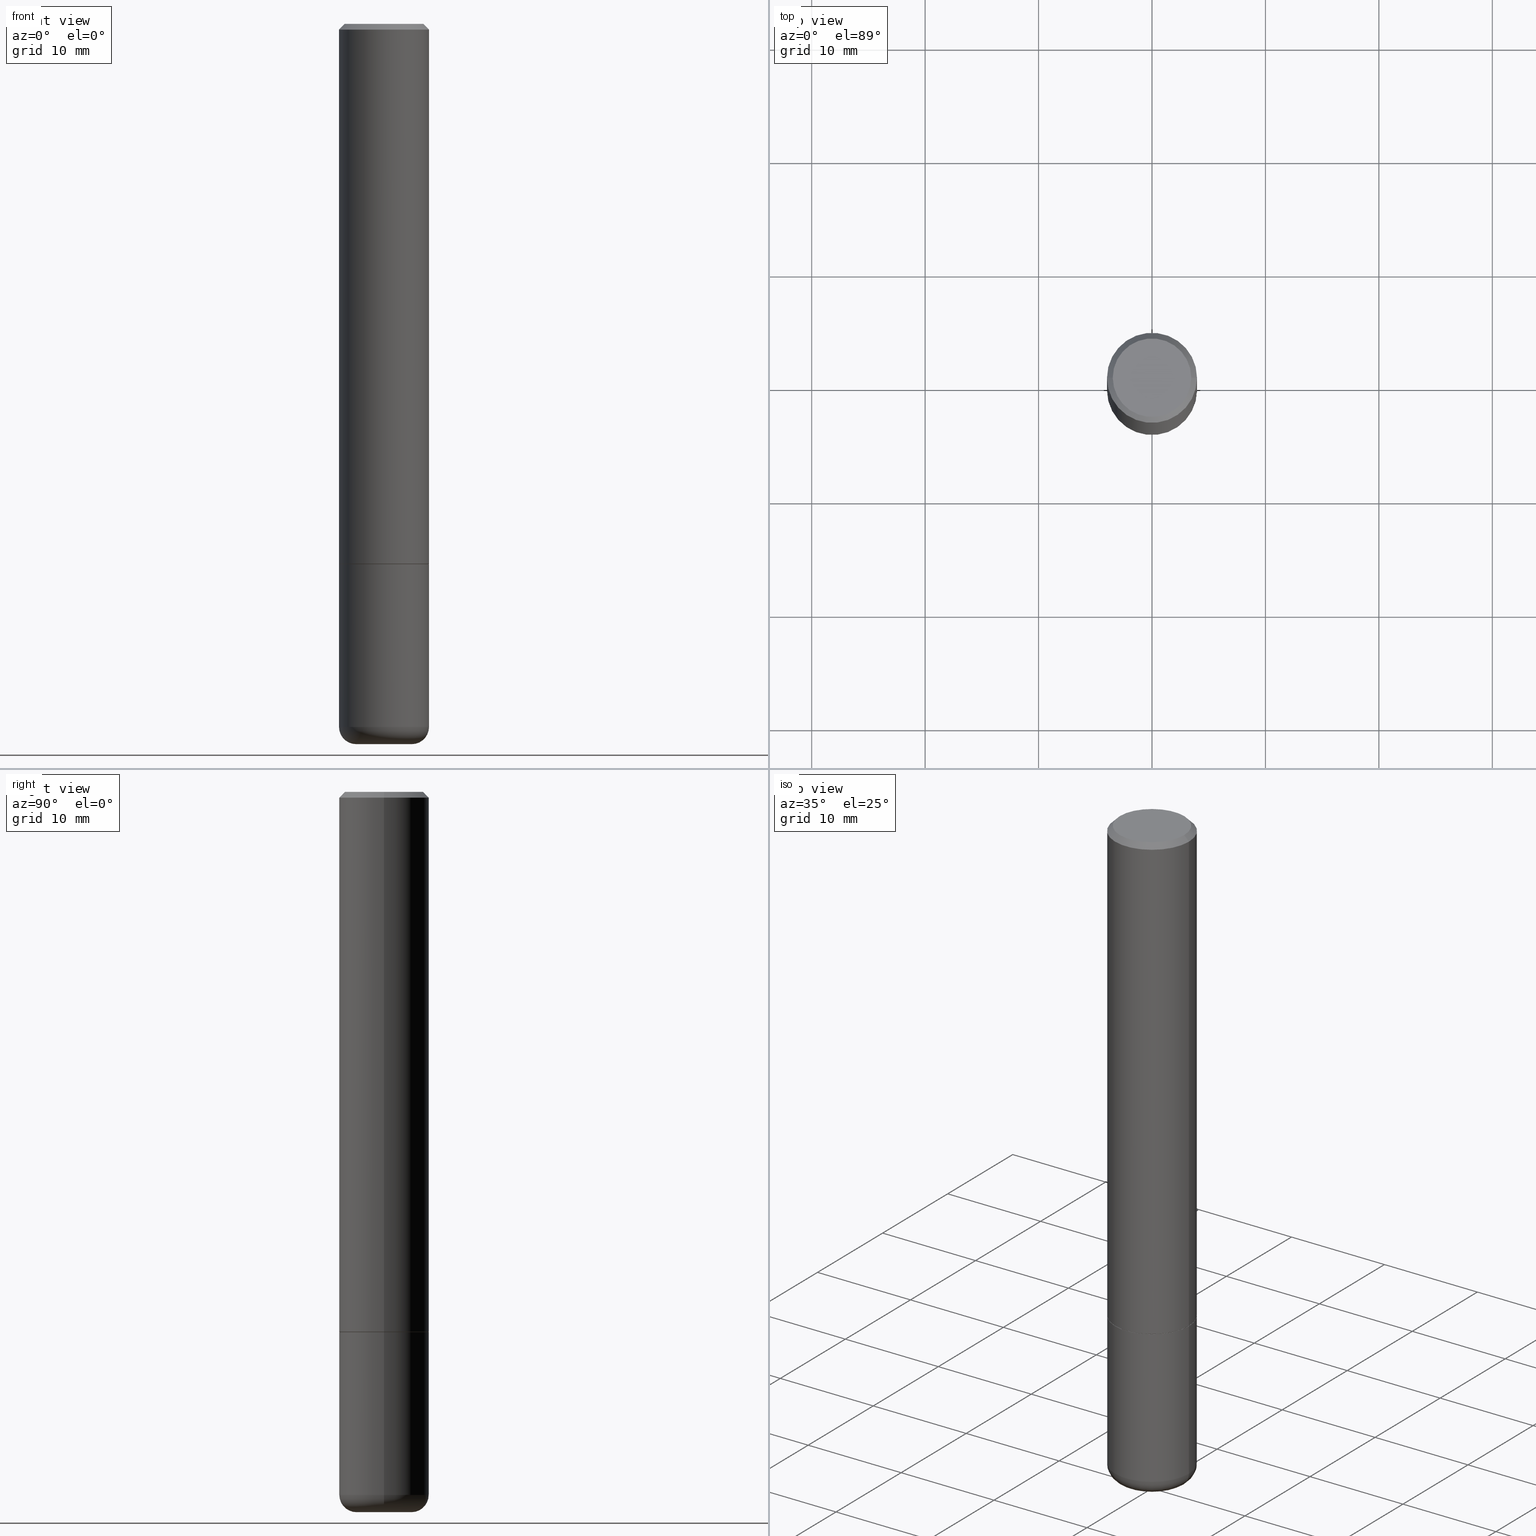
[diagram: canonical four-view strip — front | top / right | iso, engineering-drawing reading convention]
A machine part, canonical four-view strip (front | top / right | iso — engineering-drawing reading convention). The complete STEP part file that produces these views, byte-faithful:
ISO-10303-21;
HEADER;
FILE_DESCRIPTION (( 'STEP AP203' ),
    '1' );
FILE_NAME ('38811.STEP',
    '2024-03-03T14:14:03',
    ( '' ),
    ( '' ),
    'SwSTEP 2.0',
    'SolidWorks 2023',
    '' );
FILE_SCHEMA (( 'CONFIG_CONTROL_DESIGN' ));
ENDSEC;

DATA;
#1 = ORIENTED_EDGE ( 'NONE', *, *, #112, .T. ) ;
#2 = APPROVAL_ROLE ( '' ) ;
#3 = VERTEX_POINT ( 'NONE', #11 ) ;
#4 = FACE_OUTER_BOUND ( 'NONE', #177, .T. ) ;
#5 = ORIENTED_EDGE ( 'NONE', *, *, #158, .T. ) ;
#6 = ADVANCED_FACE ( 'NONE', ( #140 ), #183, .F. ) ;
#7 = DIRECTION ( 'NONE',  ( 0.000000000000000000, 0.000000000000000000, 1.000000000000000000 ) ) ;
#8 = EDGE_LOOP ( 'NONE', ( #352, #365, #357, #228 ) ) ;
#9 = CALENDAR_DATE ( 2024, 3, 3 ) ;
#10 = ORIENTED_EDGE ( 'NONE', *, *, #235, .T. ) ;
#11 = CARTESIAN_POINT ( 'NONE',  ( -0.1562500000000001110, -7.408991442152118508E-15, -2.440000000000000391 ) ) ;
#12 = DIRECTION ( 'NONE',  ( -2.445468806185136597E-29, 3.491481338843145583E-15, 1.000000000000000000 ) ) ;
#13 = EDGE_CURVE ( 'NONE', #300, #414, #249, .T. ) ;
#14 = AXIS2_PLACEMENT_3D ( 'NONE', #56, #132, #88 ) ;
#15 = DIRECTION ( 'NONE',  ( 1.000000000000000000, -6.982962677686266711E-15, 4.876176775795936353E-29 ) ) ;
#16 = CC_DESIGN_DATE_AND_TIME_ASSIGNMENT ( #205, #138, ( #202 ) ) ;
#17 = CARTESIAN_POINT ( 'NONE',  ( -0.1562500000000000000, -6.422647963928930337E-15, -1.875000000000000000 ) ) ;
#18 = EDGE_CURVE ( 'NONE', #109, #100, #366, .T. ) ;
#19 = CARTESIAN_POINT ( 'NONE',  ( -0.1562500000000002220, -2.196209803259299803E-15, -1.874000000000000110 ) ) ;
#20 = LINE ( 'NONE', #119, #82 ) ;
#21 = DIRECTION ( 'NONE',  ( -1.000000000000000000, 6.982962677686268288E-15, 0.000000000000000000 ) ) ;
#22 = DIRECTION ( 'NONE',  ( -2.445468806185136597E-29, 3.491481338843145583E-15, 1.000000000000000000 ) ) ;
#23 = ORIENTED_EDGE ( 'NONE', *, *, #272, .F. ) ;
#24 = EDGE_CURVE ( 'NONE', #30, #109, #63, .T. ) ;
#25 = DIRECTION ( 'NONE',  ( 2.438088387897960049E-29, -3.491481338843145188E-15, -1.000000000000000000 ) ) ;
#26 = ORIENTED_EDGE ( 'NONE', *, *, #347, .F. ) ;
#27 = AXIS2_PLACEMENT_3D ( 'NONE', #53, #76, #185 ) ;
#28 = APPROVAL_PERSON_ORGANIZATION ( #34, #292, #101 ) ;
#29 = DIRECTION ( 'NONE',  ( -2.445468806185136597E-29, 3.491481338843145583E-15, 1.000000000000000000 ) ) ;
#30 = VERTEX_POINT ( 'NONE', #363 ) ;
#31 = ADVANCED_FACE ( 'NONE', ( #68 ), #232, .T. ) ;
#32 = LINE ( 'NONE', #317, #150 ) ;
#33 = ORIENTED_EDGE ( 'NONE', *, *, #355, .F. ) ;
#34 = PERSON_AND_ORGANIZATION ( #376, #405 ) ;
#35 = EDGE_LOOP ( 'NONE', ( #193, #326, #245, #166 ) ) ;
#36 = AXIS2_PLACEMENT_3D ( 'NONE', #164, #321, #294 ) ;
#37 = PERSON_AND_ORGANIZATION ( #376, #405 ) ;
#38 = DIRECTION ( 'NONE',  ( -2.445468806185136597E-29, 3.491481338843145583E-15, 1.000000000000000000 ) ) ;
#39 = APPROVAL_ROLE ( '' ) ;
#40 = ORIENTED_EDGE ( 'NONE', *, *, #371, .T. ) ;
#41 = CALENDAR_DATE ( 2024, 3, 3 ) ;
#42 = CYLINDRICAL_SURFACE ( 'NONE', #241, 0.1562500000000001388 ) ;
#43 = CONICAL_SURFACE ( 'NONE', #96, 0.1552499999999999991, 0.7853981633975165577 ) ;
#44 = ADVANCED_BREP_SHAPE_REPRESENTATION ( '38811', ( #221, #69, #57 ), #156 ) ;
#45 = AXIS2_PLACEMENT_3D ( 'NONE', #343, #49, #118 ) ;
#46 = APPLICATION_PROTOCOL_DEFINITION ( 'international standard', 'config_control_design', 1994, #303 ) ;
#47 = ORIENTED_EDGE ( 'NONE', *, *, #337, .F. ) ;
#48 = CARTESIAN_POINT ( 'NONE',  ( 0.1562500000000000278, -1.141782438928665105E-15, -0.02000000000000003511 ) ) ;
#49 = DIRECTION ( 'NONE',  ( -2.445468806185136597E-29, 3.491481338843145583E-15, 1.000000000000000000 ) ) ;
#50 = CC_DESIGN_DATE_AND_TIME_ASSIGNMENT ( #372, #72, ( #182 ) ) ;
#51 = AXIS2_PLACEMENT_3D ( 'NONE', #386, #297, #167 ) ;
#52 = DIRECTION ( 'NONE',  ( -2.438088387897960049E-29, 3.491481338843145188E-15, 1.000000000000000000 ) ) ;
#53 = CARTESIAN_POINT ( 'NONE',  ( 0.000000000000000000, 0.000000000000000000, 0.000000000000000000 ) ) ;
#54 = CARTESIAN_POINT ( 'NONE',  ( 4.585254011597131119E-29, -6.546527510330898707E-15, -1.875000000000000000 ) ) ;
#55 = VECTOR ( 'NONE', #207, 39.37007874015748143 ) ;
#56 = CARTESIAN_POINT ( 'NONE',  ( 4.585254011597131119E-29, -6.546527510330898707E-15, -1.875000000000000000 ) ) ;
#57 = AXIS2_PLACEMENT_3D ( 'NONE', #395, #7, #70 ) ;
#58 = CARTESIAN_POINT ( 'NONE',  ( 0.1562500000000001110, -9.610302385165753433E-15, -2.440000000000000391 ) ) ;
#59 = DIRECTION ( 'NONE',  ( -2.445468806185136597E-29, 3.491481338843145583E-15, 1.000000000000000000 ) ) ;
#60 = CARTESIAN_POINT ( 'NONE',  ( -3.796142312261662725E-29, -2.292012149601313989E-14, -2.500000000000000000 ) ) ;
#61 = CIRCLE ( 'NONE', #172, 0.1562500000000000000 ) ;
#62 = VERTEX_POINT ( 'NONE', #239 ) ;
#63 = LINE ( 'NONE', #212, #55 ) ;
#64 = CARTESIAN_POINT ( 'NONE',  ( 0.000000000000000000, 0.000000000000000000, 0.000000000000000000 ) ) ;
#65 = CIRCLE ( 'NONE', #106, 0.1362500000000000377 ) ;
#66 = PRODUCT_DEFINITION_FORMATION_WITH_SPECIFIED_SOURCE ( 'ANY', '', #154, .NOT_KNOWN. ) ;
#67 = PERSON_AND_ORGANIZATION_ROLE ( 'creator' ) ;
#68 = FACE_OUTER_BOUND ( 'NONE', #327, .T. ) ;
#69 = MANIFOLD_SOLID_BREP ( 'Body-Move/Copy2[2]', #135 ) ;
#70 = DIRECTION ( 'NONE',  ( 1.000000000000000000, 0.000000000000000000, 0.000000000000000000 ) ) ;
#71 = DIRECTION ( 'NONE',  ( 2.438088387897960049E-29, -3.491481338843145188E-15, -1.000000000000000000 ) ) ;
#72 = DATE_TIME_ROLE ( 'classification_date' ) ;
#73 = ORIENTED_EDGE ( 'NONE', *, *, #323, .F. ) ;
#74 = CC_DESIGN_PERSON_AND_ORGANIZATION_ASSIGNMENT ( #244, #238, ( #154 ) ) ;
#75 = CIRCLE ( 'NONE', #226, 0.09625000000000000222 ) ;
#76 = DIRECTION ( 'NONE',  ( -2.445468806185136597E-29, 3.491481338843145583E-15, 1.000000000000000000 ) ) ;
#77 = DIRECTION ( 'NONE',  ( -0.7071067811865957564, 7.493145998870527710E-15, 0.7071067811864992780 ) ) ;
#78 = PRODUCT_DEFINITION_SHAPE ( 'NONE', 'NONE',  #202 ) ;
#79 = DIRECTION ( 'NONE',  ( 1.000000000000000000, -6.982962677686265922E-15, 4.883557194083112340E-29 ) ) ;
#80 = ADVANCED_FACE ( 'NONE', ( #334 ), #43, .T. ) ;
#81 = DIMENSIONAL_EXPONENTS ( 1.000000000000000000, 0.000000000000000000, 0.000000000000000000, 0.000000000000000000, 0.000000000000000000, 0.000000000000000000, 0.000000000000000000 ) ;
#82 = VECTOR ( 'NONE', #344, 39.37007874015748143 ) ;
#83 = APPROVAL_PERSON_ORGANIZATION ( #301, #98, #2 ) ;
#84 = DIRECTION ( 'NONE',  ( -2.445468806185136597E-29, 3.491481338843145583E-15, 1.000000000000000000 ) ) ;
#85 = DIRECTION ( 'NONE',  ( 1.000000000000000000, -6.982962677686269077E-15, 0.000000000000000000 ) ) ;
#86 = ADVANCED_FACE ( 'NONE', ( #4 ), #42, .T. ) ;
#87 = CIRCLE ( 'NONE', #149, 0.06000000000000021289 ) ;
#88 = DIRECTION ( 'NONE',  ( -1.000000000000000000, 6.982962677686265922E-15, -4.876176775795935793E-29 ) ) ;
#89 = LOCAL_TIME ( 9, 14, 3.000000000000000000, #331 ) ;
#90 = DIRECTION ( 'NONE',  ( -2.445468806185136877E-29, 3.491481338843145188E-15, 1.000000000000000000 ) ) ;
#91 = ORIENTED_EDGE ( 'NONE', *, *, #323, .T. ) ;
#92 = ORIENTED_EDGE ( 'NONE', *, *, #24, .F. ) ;
#93 = EDGE_CURVE ( 'NONE', #95, #3, #87, .T. ) ;
#94 = CARTESIAN_POINT ( 'NONE',  ( 6.113672015462842613E-29, -8.728703347107866520E-15, -2.500000000000000444 ) ) ;
#95 = VERTEX_POINT ( 'NONE', #310 ) ;
#96 = AXIS2_PLACEMENT_3D ( 'NONE', #332, #146, #111 ) ;
#97 = LOCAL_TIME ( 9, 14, 3.000000000000000000, #305 ) ;
#98 = APPROVAL ( #298, 'UNSPECIFIED' ) ;
#99 = PERSON_AND_ORGANIZATION_ROLE ( 'creator' ) ;
#100 = VERTEX_POINT ( 'NONE', #19 ) ;
#101 = APPROVAL_ROLE ( '' ) ;
#102 = ORIENTED_EDGE ( 'NONE', *, *, #145, .T. ) ;
#103 = EDGE_CURVE ( 'NONE', #195, #295, #206, .T. ) ;
#104 = APPROVAL_STATUS ( 'not_yet_approved' ) ;
#105 = ORIENTED_EDGE ( 'NONE', *, *, #103, .T. ) ;
#106 = AXIS2_PLACEMENT_3D ( 'NONE', #380, #188, #377 ) ;
#107 = CONICAL_SURFACE ( 'NONE', #187, 0.1562500000000000278, 0.7853981633974472798 ) ;
#108 = APPLICATION_PROTOCOL_DEFINITION ( 'international standard', 'config_control_design', 1994, #388 ) ;
#109 = VERTEX_POINT ( 'NONE', #315 ) ;
#110 = PERSON_AND_ORGANIZATION ( #376, #405 ) ;
#111 = DIRECTION ( 'NONE',  ( 1.000000000000000000, -6.982962677686268288E-15, 0.000000000000000000 ) ) ;
#112 = EDGE_CURVE ( 'NONE', #280, #62, #65, .T. ) ;
#113 = DIRECTION ( 'NONE',  ( -2.445468806185136597E-29, 3.491481338843145583E-15, 1.000000000000000000 ) ) ;
#114 = CC_DESIGN_PERSON_AND_ORGANIZATION_ASSIGNMENT ( #110, #236, ( #182 ) ) ;
#115 = CIRCLE ( 'NONE', #45, 0.1562500000000002220 ) ;
#116 = CARTESIAN_POINT ( 'NONE',  ( 0.000000000000000000, 0.000000000000000000, 0.000000000000000000 ) ) ;
#117 = ADVANCED_FACE ( 'NONE', ( #375 ), #254, .T. ) ;
#118 = DIRECTION ( 'NONE',  ( 1.000000000000000000, -6.982962677686265922E-15, 0.000000000000000000 ) ) ;
#119 = CARTESIAN_POINT ( 'NONE',  ( -0.1562500000000000278, 1.021258291611616467E-15, -0.02000000000000003511 ) ) ;
#120 = AXIS2_PLACEMENT_3D ( 'NONE', #175, #309, #271 ) ;
#121 = AXIS2_PLACEMENT_3D ( 'NONE', #389, #59, #233 ) ;
#122 = DESIGN_CONTEXT ( 'detailed design', #303, 'design' ) ;
#123 = CARTESIAN_POINT ( 'NONE',  ( 0.000000000000000000, 0.000000000000000000, 0.000000000000000000 ) ) ;
#124 = FACE_OUTER_BOUND ( 'NONE', #307, .T. ) ;
#125 = APPROVAL ( #104, 'UNSPECIFIED' ) ;
#126 = DIRECTION ( 'NONE',  ( 2.445468806185136597E-29, -3.491481338843145583E-15, -1.000000000000000000 ) ) ;
#127 = ORIENTED_EDGE ( 'NONE', *, *, #255, .F. ) ;
#128 = DIRECTION ( 'NONE',  ( -2.445468806185136597E-29, 3.491481338843145583E-15, 1.000000000000000000 ) ) ;
#129 = VECTOR ( 'NONE', #77, 39.37007874015748143 ) ;
#130 = ADVANCED_FACE ( 'NONE', ( #216 ), #311, .F. ) ;
#131 = DIRECTION ( 'NONE',  ( 1.000000000000000000, -6.982962677686269077E-15, 0.000000000000000000 ) ) ;
#132 = DIRECTION ( 'NONE',  ( 2.438088387897960049E-29, -3.491481338843145188E-15, -1.000000000000000000 ) ) ;
#133 = ORIENTED_EDGE ( 'NONE', *, *, #158, .F. ) ;
#134 = COORDINATED_UNIVERSAL_TIME_OFFSET ( 5, 0, .BEHIND. ) ;
#135 = CLOSED_SHELL ( 'NONE', ( #31, #178, #186, #308, #86, #80, #130, #6 ) ) ;
#136 = ORIENTED_EDGE ( 'NONE', *, *, #281, .F. ) ;
#137 = CONICAL_SURFACE ( 'NONE', #293, 0.1562500000000000278, 0.7853981633974472798 ) ;
#138 = DATE_TIME_ROLE ( 'creation_date' ) ;
#139 = CARTESIAN_POINT ( 'NONE',  ( 4.582808542790945516E-29, -6.543036028992054911E-15, -1.874000000000000110 ) ) ;
#140 = FACE_OUTER_BOUND ( 'NONE', #354, .T. ) ;
#141 = ORIENTED_EDGE ( 'NONE', *, *, #296, .T. ) ;
#142 = CIRCLE ( 'NONE', #181, 0.1552499999999999991 ) ;
#143 = CC_DESIGN_APPROVAL ( #98, ( #182 ) ) ;
#144 =( CONVERSION_BASED_UNIT ( 'INCH', #200 ) LENGTH_UNIT ( ) NAMED_UNIT ( #81 ) );
#145 = EDGE_CURVE ( 'NONE', #214, #373, #275, .T. ) ;
#146 = DIRECTION ( 'NONE',  ( -2.445468806185136597E-29, 3.491481338843145583E-15, 1.000000000000000000 ) ) ;
#147 = CARTESIAN_POINT ( 'NONE',  ( 9.514286648347541549E-16, 0.1362500000000000377, -4.757143324173787538E-16 ) ) ;
#148 = CARTESIAN_POINT ( 'NONE',  ( 4.890937612370281041E-31, -6.982962677686302702E-17, -0.02000000000000003511 ) ) ;
#149 = AXIS2_PLACEMENT_3D ( 'NONE', #273, #398, #314 ) ;
#150 = VECTOR ( 'NONE', #90, 39.37007874015748143 ) ;
#151 = DIRECTION ( 'NONE',  ( -2.445468806185136597E-29, 3.491481338843145583E-15, 1.000000000000000000 ) ) ;
#152 = EDGE_CURVE ( 'NONE', #280, #373, #20, .T. ) ;
#153 = FACE_OUTER_BOUND ( 'NONE', #400, .T. ) ;
#154 = PRODUCT ( '38811', '38811', '', ( #397 ) ) ;
#155 = DIRECTION ( 'NONE',  ( 1.000000000000000000, -6.982962677686265922E-15, 4.876176775795935793E-29 ) ) ;
#156 =( GEOMETRIC_REPRESENTATION_CONTEXT ( 3 ) GLOBAL_UNCERTAINTY_ASSIGNED_CONTEXT ( ( #253 ) ) GLOBAL_UNIT_ASSIGNED_CONTEXT ( ( #144, #203, #338 ) ) REPRESENTATION_CONTEXT ( 'NONE', 'WORKASPACE' ) );
#157 = DIRECTION ( 'NONE',  ( 1.000000000000000000, -6.982962677686266711E-15, 0.000000000000000000 ) ) ;
#158 = EDGE_CURVE ( 'NONE', #247, #30, #142, .T. ) ;
#159 = CARTESIAN_POINT ( 'NONE',  ( 0.09625000000000000222, -9.400813504835169849E-15, -2.500000000000000444 ) ) ;
#160 = ORIENTED_EDGE ( 'NONE', *, *, #262, .F. ) ;
#161 = CARTESIAN_POINT ( 'NONE',  ( 4.585254011597131119E-29, -6.546527510330898707E-15, -1.875000000000000000 ) ) ;
#162 = ORIENTED_EDGE ( 'NONE', *, *, #304, .T. ) ;
#163 = ADVANCED_FACE ( 'NONE', ( #189 ), #339, .T. ) ;
#164 = CARTESIAN_POINT ( 'NONE',  ( 4.890937612370281041E-31, -6.982962677686302702E-17, -0.02000000000000003511 ) ) ;
#165 = AXIS2_PLACEMENT_3D ( 'NONE', #161, #192, #131 ) ;
#166 = ORIENTED_EDGE ( 'NONE', *, *, #347, .T. ) ;
#167 = DIRECTION ( 'NONE',  ( 1.000000000000000000, -6.982962677686262766E-15, 0.000000000000000000 ) ) ;
#168 = EDGE_LOOP ( 'NONE', ( #267, #133 ) ) ;
#169 = SHAPE_DEFINITION_REPRESENTATION ( #78, #44 ) ;
#170 = AXIS2_PLACEMENT_3D ( 'NONE', #171, #210, #368 ) ;
#171 = CARTESIAN_POINT ( 'NONE',  ( 0.09625000000000000222, -9.191324624504578377E-15, -2.440000000000000391 ) ) ;
#172 = AXIS2_PLACEMENT_3D ( 'NONE', #346, #84, #215 ) ;
#173 = ADVANCED_FACE ( 'NONE', ( #153 ), #378, .T. ) ;
#174 = PERSON_AND_ORGANIZATION_ROLE ( 'design_supplier' ) ;
#175 = CARTESIAN_POINT ( 'NONE',  ( 4.585254011597131119E-29, -6.546527510330898707E-15, -1.875000000000000000 ) ) ;
#176 = DATE_AND_TIME ( #362, #324 ) ;
#177 = EDGE_LOOP ( 'NONE', ( #23, #322, #403, #26 ) ) ;
#178 = ADVANCED_FACE ( 'NONE', ( #284 ), #345, .T. ) ;
#179 = DATE_AND_TIME ( #41, #277 ) ;
#180 = DIRECTION ( 'NONE',  ( 1.000000000000000000, -6.982962677686265922E-15, 0.000000000000000000 ) ) ;
#181 = AXIS2_PLACEMENT_3D ( 'NONE', #287, #286, #289 ) ;
#182 = SECURITY_CLASSIFICATION ( '', '', #209 ) ;
#183 = PLANE ( 'NONE',  #358 ) ;
#184 = CARTESIAN_POINT ( 'NONE',  ( -0.1552499999999999991, -5.438111458715120773E-15, -1.875000000000000000 ) ) ;
#185 = DIRECTION ( 'NONE',  ( 1.000000000000000000, -6.982962677686266711E-15, 4.876176775795936353E-29 ) ) ;
#186 = ADVANCED_FACE ( 'NONE', ( #257 ), #107, .T. ) ;
#187 = AXIS2_PLACEMENT_3D ( 'NONE', #407, #217, #313 ) ;
#188 = DIRECTION ( 'NONE',  ( -2.445468806185136597E-29, 3.491481338843145583E-15, 1.000000000000000000 ) ) ;
#189 = FACE_OUTER_BOUND ( 'NONE', #8, .T. ) ;
#190 = DIRECTION ( 'NONE',  ( 0.7071067811865467956, -7.319954787623254468E-15, -0.7071067811865482389 ) ) ;
#191 = AXIS2_PLACEMENT_3D ( 'NONE', #123, #151, #251 ) ;
#192 = DIRECTION ( 'NONE',  ( -2.445468806185136597E-29, 3.491481338843145583E-15, 1.000000000000000000 ) ) ;
#193 = ORIENTED_EDGE ( 'NONE', *, *, #235, .F. ) ;
#194 = CARTESIAN_POINT ( 'NONE',  ( 4.890937612370281041E-31, -6.982962677686302702E-17, -0.02000000000000003511 ) ) ;
#195 = VERTEX_POINT ( 'NONE', #17 ) ;
#196 = CARTESIAN_POINT ( 'NONE',  ( 0.000000000000000000, 0.000000000000000000, 0.000000000000000000 ) ) ;
#197 = DIRECTION ( 'NONE',  ( -2.445468806185136877E-29, 3.491481338843145188E-15, 1.000000000000000000 ) ) ;
#198 = AXIS2_PLACEMENT_3D ( 'NONE', #290, #29, #259 ) ;
#199 = EDGE_LOOP ( 'NONE', ( #127, #5, #391, #160 ) ) ;
#200 = LENGTH_MEASURE_WITH_UNIT ( LENGTH_MEASURE( 0.02539999999999999897 ), #360 );
#201 = ORIENTED_EDGE ( 'NONE', *, *, #381, .T. ) ;
#202 = PRODUCT_DEFINITION ( 'UNKNOWN', '', #66, #122 ) ;
#203 =( NAMED_UNIT ( * ) PLANE_ANGLE_UNIT ( ) SI_UNIT ( $, .RADIAN. ) );
#204 = ORIENTED_EDGE ( 'NONE', *, *, #381, .F. ) ;
#205 = DATE_AND_TIME ( #9, #89 ) ;
#206 = CIRCLE ( 'NONE', #261, 0.1562500000000000000 ) ;
#207 = DIRECTION ( 'NONE',  ( 0.7071067811865957564, -2.468850131082761932E-15, 0.7071067811864992780 ) ) ;
#208 = AXIS2_PLACEMENT_3D ( 'NONE', #196, #128, #265 ) ;
#209 = SECURITY_CLASSIFICATION_LEVEL ( 'unclassified' ) ;
#210 = DIRECTION ( 'NONE',  ( -6.982962677686266711E-15, -1.000000000000000000, 3.491481338843145583E-15 ) ) ;
#211 = EDGE_CURVE ( 'NONE', #414, #3, #61, .T. ) ;
#212 = CARTESIAN_POINT ( 'NONE',  ( 0.1552499999999999991, -7.630632466041692655E-15, -1.875000000000000000 ) ) ;
#213 = APPROVAL_DATE_TIME ( #179, #292 ) ;
#214 = VERTEX_POINT ( 'NONE', #408 ) ;
#215 = DIRECTION ( 'NONE',  ( 1.000000000000000000, -6.982962677686262766E-15, 0.000000000000000000 ) ) ;
#216 = FACE_OUTER_BOUND ( 'NONE', #168, .T. ) ;
#217 = DIRECTION ( 'NONE',  ( 2.445468806185136597E-29, -3.491481338843145583E-15, -1.000000000000000000 ) ) ;
#218 = CC_DESIGN_PERSON_AND_ORGANIZATION_ASSIGNMENT ( #37, #174, ( #66 ) ) ;
#219 = AXIS2_PLACEMENT_3D ( 'NONE', #54, #52, #155 ) ;
#220 = DIRECTION ( 'NONE',  ( -2.445468806185136597E-29, 3.491481338843145583E-15, 1.000000000000000000 ) ) ;
#221 = MANIFOLD_SOLID_BREP ( 'Body-Move/Copy2[1]', #404 ) ;
#222 = DIRECTION ( 'NONE',  ( 1.000000000000000000, -6.982962677686269077E-15, 0.000000000000000000 ) ) ;
#223 = CC_DESIGN_PERSON_AND_ORGANIZATION_ASSIGNMENT ( #367, #67, ( #202 ) ) ;
#224 = PLANE ( 'NONE',  #14 ) ;
#225 = AXIS2_PLACEMENT_3D ( 'NONE', #139, #336, #180 ) ;
#226 = AXIS2_PLACEMENT_3D ( 'NONE', #382, #356, #85 ) ;
#227 = LINE ( 'NONE', #415, #417 ) ;
#228 = ORIENTED_EDGE ( 'NONE', *, *, #296, .F. ) ;
#229 = DIRECTION ( 'NONE',  ( -2.445468806185136877E-29, 3.491481338843145188E-15, 1.000000000000000000 ) ) ;
#230 = ORIENTED_EDGE ( 'NONE', *, *, #13, .F. ) ;
#231 = CARTESIAN_POINT ( 'NONE',  ( -0.1362500000000000377, 9.863434782231852123E-16, -6.775751096333141285E-30 ) ) ;
#232 = CONICAL_SURFACE ( 'NONE', #120, 0.1552499999999999991, 0.7853981633975165577 ) ;
#233 = DIRECTION ( 'NONE',  ( 1.000000000000000000, -6.982962677686268288E-15, 0.000000000000000000 ) ) ;
#234 = CC_DESIGN_SECURITY_CLASSIFICATION ( #182, ( #66 ) ) ;
#235 = EDGE_CURVE ( 'NONE', #62, #214, #342, .T. ) ;
#236 = PERSON_AND_ORGANIZATION_ROLE ( 'classification_officer' ) ;
#237 = EDGE_LOOP ( 'NONE', ( #73, #141, #396, #402 ) ) ;
#238 = PERSON_AND_ORGANIZATION_ROLE ( 'design_owner' ) ;
#239 = CARTESIAN_POINT ( 'NONE',  ( 0.1362500000000000377, -1.038262645562518322E-15, 6.957025900226697878E-30 ) ) ;
#240 = APPROVAL_DATE_TIME ( #369, #125 ) ;
#241 = AXIS2_PLACEMENT_3D ( 'NONE', #64, #38, #302 ) ;
#242 = ORIENTED_EDGE ( 'NONE', *, *, #145, .F. ) ;
#243 = LOCAL_TIME ( 9, 14, 3.000000000000000000, #364 ) ;
#244 = PERSON_AND_ORGANIZATION ( #376, #405 ) ;
#245 = ORIENTED_EDGE ( 'NONE', *, *, #152, .T. ) ;
#246 = CALENDAR_DATE ( 2024, 3, 3 ) ;
#247 = VERTEX_POINT ( 'NONE', #184 ) ;
#248 = CARTESIAN_POINT ( 'NONE',  ( 4.585254011597131119E-29, -6.546527510330898707E-15, -1.875000000000000000 ) ) ;
#249 = CIRCLE ( 'NONE', #170, 0.06000000000000021289 ) ;
#250 = CIRCLE ( 'NONE', #208, 0.1362500000000000377 ) ;
#251 = DIRECTION ( 'NONE',  ( 1.000000000000000000, -6.982962677686266711E-15, 4.876176775795936353E-29 ) ) ;
#252 = DIRECTION ( 'NONE',  ( -2.445468806185136597E-29, 3.491481338843145583E-15, 1.000000000000000000 ) ) ;
#253 = UNCERTAINTY_MEASURE_WITH_UNIT (LENGTH_MEASURE( 1.000000000000000082E-05 ), #144, 'distance_accuracy_value', 'NONE');
#254 = CYLINDRICAL_SURFACE ( 'NONE', #27, 0.1562500000000000000 ) ;
#255 = EDGE_CURVE ( 'NONE', #247, #100, #282, .T. ) ;
#256 = APPROVAL_PERSON_ORGANIZATION ( #270, #125, #39 ) ;
#257 = FACE_OUTER_BOUND ( 'NONE', #370, .T. ) ;
#258 = CARTESIAN_POINT ( 'NONE',  ( 0.1562500000000000000, -7.637615428719378669E-15, -1.875000000000000000 ) ) ;
#259 = DIRECTION ( 'NONE',  ( 1.000000000000000000, -6.982962677686265922E-15, 4.883557194083112340E-29 ) ) ;
#260 = EDGE_LOOP ( 'NONE', ( #204, #136 ) ) ;
#261 = AXIS2_PLACEMENT_3D ( 'NONE', #248, #252, #222 ) ;
#262 = EDGE_CURVE ( 'NONE', #100, #109, #115, .T. ) ;
#263 = DIRECTION ( 'NONE',  ( -1.000000000000000000, 6.982962677686265922E-15, -4.876176775795935793E-29 ) ) ;
#264 = ORIENTED_EDGE ( 'NONE', *, *, #211, .T. ) ;
#265 = DIRECTION ( 'NONE',  ( 1.000000000000000000, -6.982962677686266711E-15, 4.876176775795936353E-29 ) ) ;
#266 = FACE_OUTER_BOUND ( 'NONE', #260, .T. ) ;
#267 = ORIENTED_EDGE ( 'NONE', *, *, #304, .F. ) ;
#268 = AXIS2_PLACEMENT_3D ( 'NONE', #94, #22, #412 ) ;
#269 = ORIENTED_EDGE ( 'NONE', *, *, #255, .T. ) ;
#270 = PERSON_AND_ORGANIZATION ( #376, #405 ) ;
#271 = DIRECTION ( 'NONE',  ( 1.000000000000000000, -6.982962677686268288E-15, 0.000000000000000000 ) ) ;
#272 = EDGE_CURVE ( 'NONE', #100, #373, #418, .T. ) ;
#273 = CARTESIAN_POINT ( 'NONE',  ( -0.09625000000000000222, -7.835317083608178998E-15, -2.440000000000000391 ) ) ;
#274 = PERSON_AND_ORGANIZATION ( #376, #405 ) ;
#275 = CIRCLE ( 'NONE', #379, 0.1562500000000000278 ) ;
#276 = ORIENTED_EDGE ( 'NONE', *, *, #355, .T. ) ;
#277 = LOCAL_TIME ( 9, 14, 3.000000000000000000, #335 ) ;
#278 = CALENDAR_DATE ( 2024, 3, 3 ) ;
#279 = DIRECTION ( 'NONE',  ( -1.000000000000000000, 6.982962677686265922E-15, -4.876176775795935793E-29 ) ) ;
#280 = VERTEX_POINT ( 'NONE', #231 ) ;
#281 = EDGE_CURVE ( 'NONE', #95, #300, #75, .T. ) ;
#282 = LINE ( 'NONE', #406, #129 ) ;
#283 = CIRCLE ( 'NONE', #165, 0.1562500000000000000 ) ;
#284 = FACE_OUTER_BOUND ( 'NONE', #340, .T. ) ;
#285 = ADVANCED_FACE ( 'NONE', ( #266 ), #353, .T. ) ;
#286 = DIRECTION ( 'NONE',  ( -2.445468806185136597E-29, 3.491481338843145583E-15, 1.000000000000000000 ) ) ;
#287 = CARTESIAN_POINT ( 'NONE',  ( 4.585254011597131119E-29, -6.546527510330898707E-15, -1.875000000000000000 ) ) ;
#288 = AXIS2_PLACEMENT_3D ( 'NONE', #60, #25, #263 ) ;
#289 = DIRECTION ( 'NONE',  ( 1.000000000000000000, -6.982962677686268288E-15, 0.000000000000000000 ) ) ;
#290 = CARTESIAN_POINT ( 'NONE',  ( 5.966943887091733341E-29, -8.519214466777275048E-15, -2.440000000000000391 ) ) ;
#291 = ORIENTED_EDGE ( 'NONE', *, *, #272, .T. ) ;
#292 = APPROVAL ( #401, 'UNSPECIFIED' ) ;
#293 = AXIS2_PLACEMENT_3D ( 'NONE', #194, #126, #21 ) ;
#294 = DIRECTION ( 'NONE',  ( 1.000000000000000000, -6.982962677686266711E-15, 0.000000000000000000 ) ) ;
#295 = VERTEX_POINT ( 'NONE', #258 ) ;
#296 = EDGE_CURVE ( 'NONE', #3, #414, #316, .T. ) ;
#297 = DIRECTION ( 'NONE',  ( -2.445468806185136597E-29, 3.491481338843145583E-15, 1.000000000000000000 ) ) ;
#298 = APPROVAL_STATUS ( 'not_yet_approved' ) ;
#299 = AXIS2_PLACEMENT_3D ( 'NONE', #116, #220, #15 ) ;
#300 = VERTEX_POINT ( 'NONE', #159 ) ;
#301 = PERSON_AND_ORGANIZATION ( #376, #405 ) ;
#302 = DIRECTION ( 'NONE',  ( 1.000000000000000000, -6.982962677686266711E-15, 4.876176775795936353E-29 ) ) ;
#303 = APPLICATION_CONTEXT ( 'configuration controlled 3d designs of mechanical parts and assemblies' ) ;
#304 = EDGE_CURVE ( 'NONE', #30, #247, #399, .T. ) ;
#305 = COORDINATED_UNIVERSAL_TIME_OFFSET ( 5, 0, .BEHIND. ) ;
#306 = ORIENTED_EDGE ( 'NONE', *, *, #18, .F. ) ;
#307 = EDGE_LOOP ( 'NONE', ( #201, #384, #416, #230 ) ) ;
#308 = ADVANCED_FACE ( 'NONE', ( #413 ), #137, .T. ) ;
#309 = DIRECTION ( 'NONE',  ( -2.445468806185136597E-29, 3.491481338843145583E-15, 1.000000000000000000 ) ) ;
#310 = CARTESIAN_POINT ( 'NONE',  ( -0.09625000000000000222, -7.726898703045442122E-15, -2.500000000000000444 ) ) ;
#311 = PLANE ( 'NONE',  #219 ) ;
#312 = CC_DESIGN_APPROVAL ( #292, ( #66 ) ) ;
#313 = DIRECTION ( 'NONE',  ( -1.000000000000000000, 6.982962677686268288E-15, 0.000000000000000000 ) ) ;
#314 = DIRECTION ( 'NONE',  ( -1.000000000000000000, 7.105427357600997914E-15, 0.000000000000000000 ) ) ;
#315 = CARTESIAN_POINT ( 'NONE',  ( 0.1562500000000002220, -7.634123947380535662E-15, -1.874000000000000110 ) ) ;
#316 = CIRCLE ( 'NONE', #51, 0.1562500000000000000 ) ;
#317 = CARTESIAN_POINT ( 'NONE',  ( -0.1562500000000000000, 1.110223024625156540E-15, -7.685836078523291160E-30 ) ) ;
#318 = ADVANCED_FACE ( 'NONE', ( #351 ), #224, .F. ) ;
#319 = LINE ( 'NONE', #392, #411 ) ;
#320 = CC_DESIGN_PERSON_AND_ORGANIZATION_ASSIGNMENT ( #274, #99, ( #66 ) ) ;
#321 = DIRECTION ( 'NONE',  ( -2.445468806185136597E-29, 3.491481338843145583E-15, 1.000000000000000000 ) ) ;
#322 = ORIENTED_EDGE ( 'NONE', *, *, #262, .T. ) ;
#323 = EDGE_CURVE ( 'NONE', #3, #195, #32, .T. ) ;
#324 = LOCAL_TIME ( 9, 14, 3.000000000000000000, #134 ) ;
#325 = CARTESIAN_POINT ( 'NONE',  ( -0.1562500000000000278, 1.021258291611616467E-15, -0.02000000000000003511 ) ) ;
#326 = ORIENTED_EDGE ( 'NONE', *, *, #112, .F. ) ;
#327 = EDGE_LOOP ( 'NONE', ( #162, #269, #306, #92 ) ) ;
#328 = APPROVAL_DATE_TIME ( #176, #98 ) ;
#329 = ORIENTED_EDGE ( 'NONE', *, *, #371, .F. ) ;
#330 = VECTOR ( 'NONE', #190, 39.37007874015748143 ) ;
#331 = COORDINATED_UNIVERSAL_TIME_OFFSET ( 5, 0, .BEHIND. ) ;
#332 = CARTESIAN_POINT ( 'NONE',  ( 4.585254011597131119E-29, -6.546527510330898707E-15, -1.875000000000000000 ) ) ;
#333 = EDGE_CURVE ( 'NONE', #414, #295, #319, .T. ) ;
#334 = FACE_OUTER_BOUND ( 'NONE', #199, .T. ) ;
#335 = COORDINATED_UNIVERSAL_TIME_OFFSET ( 5, 0, .BEHIND. ) ;
#336 = DIRECTION ( 'NONE',  ( -2.445468806185136597E-29, 3.491481338843145583E-15, 1.000000000000000000 ) ) ;
#337 = EDGE_CURVE ( 'NONE', #109, #214, #227, .T. ) ;
#338 =( NAMED_UNIT ( * ) SI_UNIT ( $, .STERADIAN. ) SOLID_ANGLE_UNIT ( ) );
#339 = TOROIDAL_SURFACE ( 'NONE', #393, 0.09625000000000000222, 0.06000000000000023370 ) ;
#340 = EDGE_LOOP ( 'NONE', ( #349, #291, #242, #47 ) ) ;
#341 = VECTOR ( 'NONE', #348, 39.37007874015748143 ) ;
#342 = LINE ( 'NONE', #48, #330 ) ;
#343 = CARTESIAN_POINT ( 'NONE',  ( 4.582808542790945516E-29, -6.543036028992054911E-15, -1.874000000000000110 ) ) ;
#344 = DIRECTION ( 'NONE',  ( -0.7071067811865467956, 2.468850131082249172E-15, -0.7071067811865482389 ) ) ;
#345 = CYLINDRICAL_SURFACE ( 'NONE', #191, 0.1562500000000001388 ) ;
#346 = CARTESIAN_POINT ( 'NONE',  ( 5.966943887091733341E-29, -8.519214466777275048E-15, -2.440000000000000391 ) ) ;
#347 = EDGE_CURVE ( 'NONE', #373, #214, #385, .T. ) ;
#348 = DIRECTION ( 'NONE',  ( -2.445468806185136877E-29, 3.491481338843145188E-15, 1.000000000000000000 ) ) ;
#349 = ORIENTED_EDGE ( 'NONE', *, *, #18, .T. ) ;
#350 = CIRCLE ( 'NONE', #268, 0.09625000000000000222 ) ;
#351 = FACE_OUTER_BOUND ( 'NONE', #394, .T. ) ;
#352 = ORIENTED_EDGE ( 'NONE', *, *, #93, .F. ) ;
#353 = PLANE ( 'NONE',  #288 ) ;
#354 = EDGE_LOOP ( 'NONE', ( #1, #40 ) ) ;
#355 = EDGE_CURVE ( 'NONE', #295, #195, #283, .T. ) ;
#356 = DIRECTION ( 'NONE',  ( -2.445468806185136597E-29, 3.491481338843145583E-15, 1.000000000000000000 ) ) ;
#357 = ORIENTED_EDGE ( 'NONE', *, *, #13, .T. ) ;
#358 = AXIS2_PLACEMENT_3D ( 'NONE', #147, #71, #279 ) ;
#359 = TOROIDAL_SURFACE ( 'NONE', #198, 0.09625000000000000222, 0.06000000000000023370 ) ;
#360 =( LENGTH_UNIT ( ) NAMED_UNIT ( * ) SI_UNIT ( $, .METRE. ) );
#361 = ORIENTED_EDGE ( 'NONE', *, *, #152, .F. ) ;
#362 = CALENDAR_DATE ( 2024, 3, 3 ) ;
#363 = CARTESIAN_POINT ( 'NONE',  ( 0.1552499999999999991, -7.630632466041692655E-15, -1.875000000000000000 ) ) ;
#364 = COORDINATED_UNIVERSAL_TIME_OFFSET ( 5, 0, .BEHIND. ) ;
#365 = ORIENTED_EDGE ( 'NONE', *, *, #281, .T. ) ;
#366 = CIRCLE ( 'NONE', #225, 0.1562500000000002220 ) ;
#367 = PERSON_AND_ORGANIZATION ( #376, #405 ) ;
#368 = DIRECTION ( 'NONE',  ( 1.000000000000000000, -6.982962677686275388E-15, 0.000000000000000000 ) ) ;
#369 = DATE_AND_TIME ( #278, #243 ) ;
#370 = EDGE_LOOP ( 'NONE', ( #329, #10, #102, #361 ) ) ;
#371 = EDGE_CURVE ( 'NONE', #62, #280, #250, .T. ) ;
#372 = DATE_AND_TIME ( #246, #97 ) ;
#373 = VERTEX_POINT ( 'NONE', #325 ) ;
#374 = CC_DESIGN_APPROVAL ( #125, ( #202 ) ) ;
#375 = FACE_OUTER_BOUND ( 'NONE', #237, .T. ) ;
#376 = PERSON ( 'UNSPECIFIED', 'UNSPECIFIED', 'UNSPECIFIED', ('UNSPECIFIED'), ('UNSPECIFIED'), ('UNSPECIFIED') ) ;
#377 = DIRECTION ( 'NONE',  ( 1.000000000000000000, -6.982962677686266711E-15, 4.876176775795936353E-29 ) ) ;
#378 = CYLINDRICAL_SURFACE ( 'NONE', #299, 0.1562500000000000000 ) ;
#379 = AXIS2_PLACEMENT_3D ( 'NONE', #148, #12, #157 ) ;
#380 = CARTESIAN_POINT ( 'NONE',  ( 0.000000000000000000, 0.000000000000000000, 0.000000000000000000 ) ) ;
#381 = EDGE_CURVE ( 'NONE', #300, #95, #350, .T. ) ;
#382 = CARTESIAN_POINT ( 'NONE',  ( 6.113672015462842613E-29, -8.728703347107866520E-15, -2.500000000000000444 ) ) ;
#383 = CARTESIAN_POINT ( 'NONE',  ( -0.1562500000000001388, 1.110223024625157526E-15, -7.685836078523296765E-30 ) ) ;
#384 = ORIENTED_EDGE ( 'NONE', *, *, #93, .T. ) ;
#385 = CIRCLE ( 'NONE', #36, 0.1562500000000000278 ) ;
#386 = CARTESIAN_POINT ( 'NONE',  ( 5.966943887091733341E-29, -8.519214466777275048E-15, -2.440000000000000391 ) ) ;
#387 = ORIENTED_EDGE ( 'NONE', *, *, #333, .F. ) ;
#388 = APPLICATION_CONTEXT ( 'configuration controlled 3d designs of mechanical parts and assemblies' ) ;
#389 = CARTESIAN_POINT ( 'NONE',  ( 4.585254011597131119E-29, -6.546527510330898707E-15, -1.875000000000000000 ) ) ;
#390 = PRODUCT_RELATED_PRODUCT_CATEGORY ( 'detail', '', ( #154 ) ) ;
#391 = ORIENTED_EDGE ( 'NONE', *, *, #24, .T. ) ;
#392 = CARTESIAN_POINT ( 'NONE',  ( 0.1562500000000000000, -1.091087918388479174E-15, 7.619026212181150377E-30 ) ) ;
#393 = AXIS2_PLACEMENT_3D ( 'NONE', #409, #113, #79 ) ;
#394 = EDGE_LOOP ( 'NONE', ( #276, #105 ) ) ;
#395 = CARTESIAN_POINT ( 'NONE',  ( 0.000000000000000000, 0.000000000000000000, 0.000000000000000000 ) ) ;
#396 = ORIENTED_EDGE ( 'NONE', *, *, #333, .T. ) ;
#397 = MECHANICAL_CONTEXT ( 'NONE', #388, 'mechanical' ) ;
#398 = DIRECTION ( 'NONE',  ( 7.105427357601001859E-15, 1.000000000000000000, -3.491481338843145583E-15 ) ) ;
#399 = CIRCLE ( 'NONE', #121, 0.1552499999999999991 ) ;
#400 = EDGE_LOOP ( 'NONE', ( #264, #91, #33, #387 ) ) ;
#401 = APPROVAL_STATUS ( 'not_yet_approved' ) ;
#402 = ORIENTED_EDGE ( 'NONE', *, *, #103, .F. ) ;
#403 = ORIENTED_EDGE ( 'NONE', *, *, #337, .T. ) ;
#404 = CLOSED_SHELL ( 'NONE', ( #173, #410, #318, #117, #163, #285 ) ) ;
#405 = ORGANIZATION ( 'UNSPECIFIED', 'UNSPECIFIED', '' ) ;
#406 = CARTESIAN_POINT ( 'NONE',  ( -0.1552499999999999991, -5.443409913063343964E-15, -1.875000000000000000 ) ) ;
#407 = CARTESIAN_POINT ( 'NONE',  ( 4.890937612370281041E-31, -6.982962677686302702E-17, -0.02000000000000003511 ) ) ;
#408 = CARTESIAN_POINT ( 'NONE',  ( 0.1562500000000000278, -1.141782438928665105E-15, -0.02000000000000003511 ) ) ;
#409 = CARTESIAN_POINT ( 'NONE',  ( 5.966943887091733341E-29, -8.519214466777275048E-15, -2.440000000000000391 ) ) ;
#410 = ADVANCED_FACE ( 'NONE', ( #124 ), #359, .T. ) ;
#411 = VECTOR ( 'NONE', #229, 39.37007874015748143 ) ;
#412 = DIRECTION ( 'NONE',  ( 1.000000000000000000, -6.982962677686269077E-15, 0.000000000000000000 ) ) ;
#413 = FACE_OUTER_BOUND ( 'NONE', #35, .T. ) ;
#414 = VERTEX_POINT ( 'NONE', #58 ) ;
#415 = CARTESIAN_POINT ( 'NONE',  ( 0.1562500000000001388, -1.091087918388480160E-15, 7.619026212181157383E-30 ) ) ;
#416 = ORIENTED_EDGE ( 'NONE', *, *, #211, .F. ) ;
#417 = VECTOR ( 'NONE', #197, 39.37007874015748143 ) ;
#418 = LINE ( 'NONE', #383, #341 ) ;
ENDSEC;
END-ISO-10303-21;
